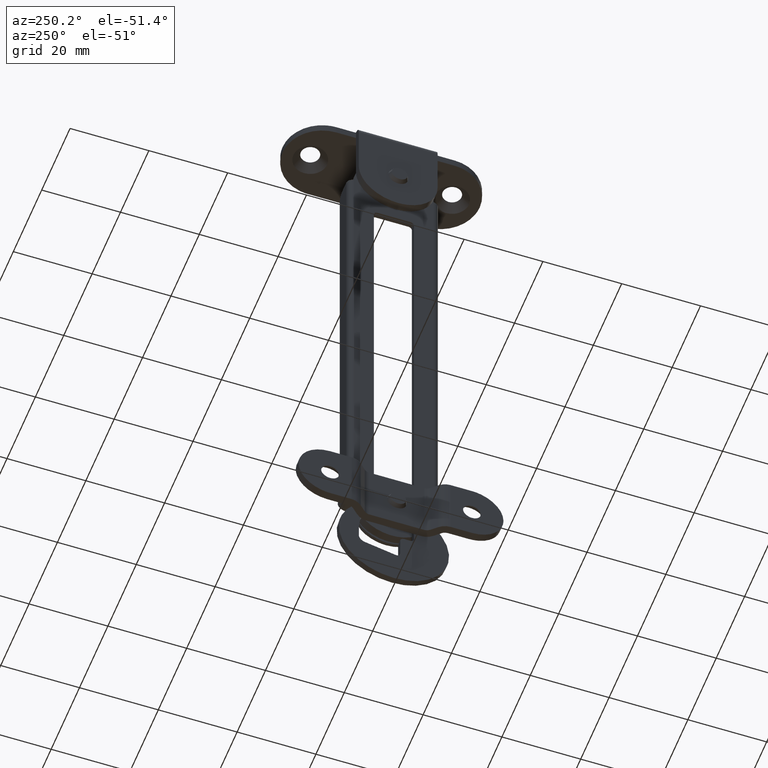
[diagram: clean part render]
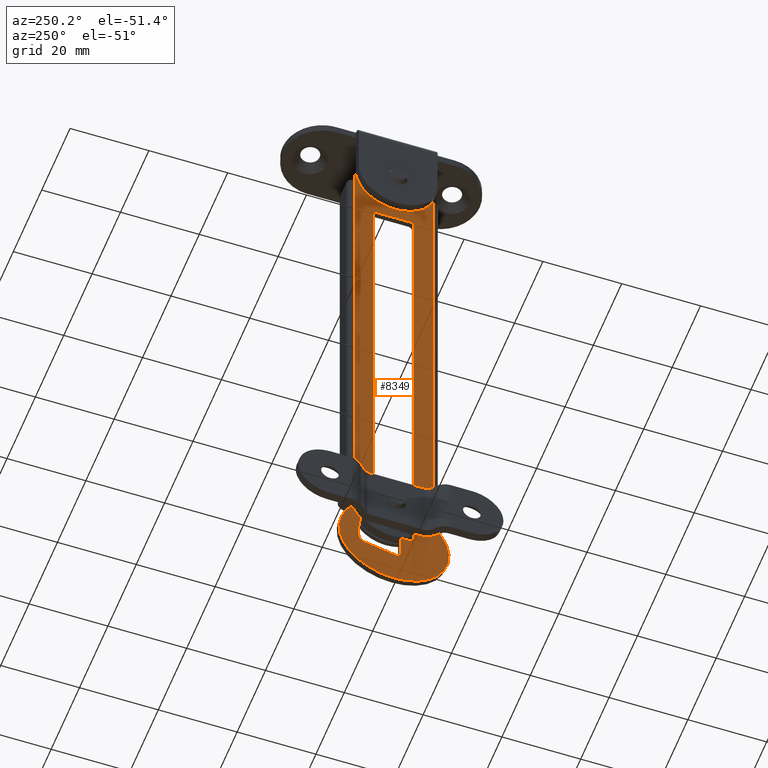
[diagram: same view with one face highlighted and labeled with its STEP entity id]
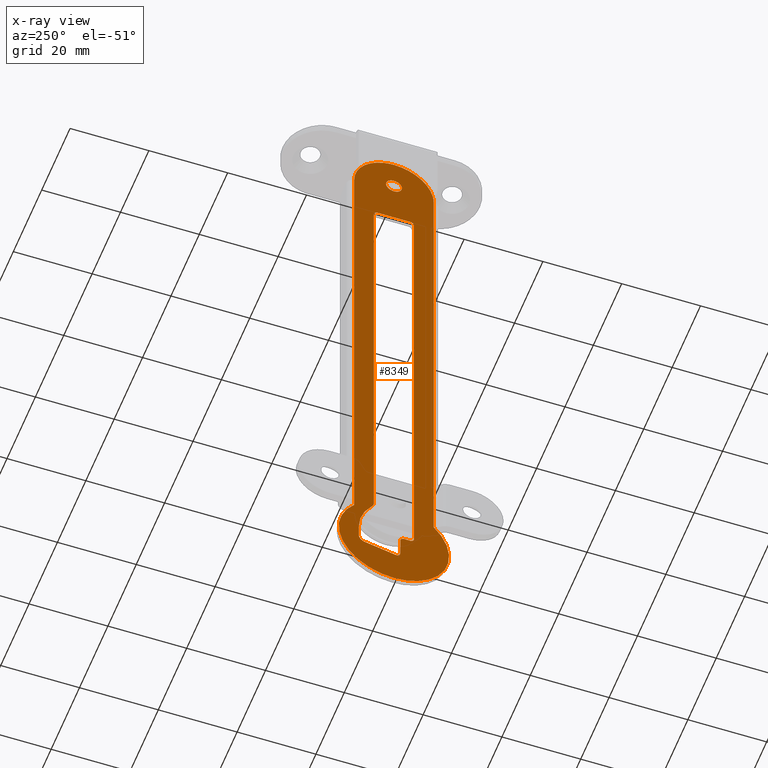
[diagram: x-ray of the same camera — body ghosted, the highlighted face saturated]
A machine part, auxiliary view. The second image highlights one B-rep face of the part: STEP entity #8349.
The next image is the same camera in x-ray: the body ghosted, the highlighted face saturated — about 0% of this face is hidden behind the body in this view.
In plain terms, the highlighted face is a freeform B-spline surface patch.
Its self-contained STEP definition (entity closure, byte-faithful):
#7864=CARTESIAN_POINT('',(5.0,0.0,-2.0));
#7865=VERTEX_POINT('',#7864);
#7866=CARTESIAN_POINT('',(5.000000000002252,1.401818145029890,-1.426501294528774));
#7867=VERTEX_POINT('',#7866);
#7868=CARTESIAN_POINT('',(5.0,0.0,-2.0));
#7869=CARTESIAN_POINT('',(5.000000000000392,0.242750482605228,-2.000207506860481));
#7870=CARTESIAN_POINT('',(5.000000000001228,0.760375032929192,-1.904511084998139));
#7871=CARTESIAN_POINT('',(5.000000000001923,1.205831004046107,-1.619581476289328));
#7872=CARTESIAN_POINT('',(5.000000000002252,1.401818145029890,-1.426501294528774));
#7873=B_SPLINE_CURVE_WITH_KNOTS('',3,(#7868,#7869,#7870,#7871,#7872),.UNSPECIFIED.,.F.,.U.,(4,1,4),(0.000057332587887,0.728239926849253,1.553409176332470),.UNSPECIFIED.);
#7874=EDGE_CURVE('',#7865,#7867,#7873,.T.);
#7876=CARTESIAN_POINT('',(5.0,-1.999999999999999,0.000000055035993));
#7877=VERTEX_POINT('',#7876);
#7878=CARTESIAN_POINT('',(5.0,-1.999999999999999,0.000000055035993));
#7879=CARTESIAN_POINT('',(5.000000000000002,-2.000154274065392,-0.245425296738623));
#7880=CARTESIAN_POINT('',(5.000000000000003,-1.899585663976937,-0.785426038325663));
#7881=CARTESIAN_POINT('',(4.999999999999996,-1.480612590041234,-1.412567735145405));
#7882=CARTESIAN_POINT('',(5.000000000000002,-0.817693192794471,-1.879239699048992));
#7883=CARTESIAN_POINT('',(5.000000000000008,-0.310991917806890,-2.000531420894137));
#7884=CARTESIAN_POINT('',(5.0,0.0,-2.0));
#7885=B_SPLINE_CURVE_WITH_KNOTS('',3,(#7878,#7879,#7880,#7881,#7882,#7883,#7884),.UNSPECIFIED.,.F.,.U.,(4,1,1,1,4),(0.000000633043129,0.736327357348586,1.619829709536686,2.208981177237709,3.141671519850971),.UNSPECIFIED.);
#7886=EDGE_CURVE('',#7877,#7865,#7885,.T.);
#7888=CARTESIAN_POINT('',(5.000000000002252,-1.401818145029889,1.426501294528773));
#7889=VERTEX_POINT('',#7888);
#7890=CARTESIAN_POINT('',(5.000000000002252,-1.401818145029889,1.426501294528773));
#7891=CARTESIAN_POINT('',(5.000000000002031,-1.543469808508132,1.287395493456759));
#7892=CARTESIAN_POINT('',(5.000000000001372,-1.865388447964063,0.859631245381083));
#7893=CARTESIAN_POINT('',(5.000000000000523,-2.000795590417968,0.331071031236148));
#7894=CARTESIAN_POINT('',(5.0,-1.999999999999999,0.000000055035993));
#7895=B_SPLINE_CURVE_WITH_KNOTS('',3,(#7890,#7891,#7892,#7893,#7894),.UNSPECIFIED.,.F.,.U.,(4,1,4),(0.000000148909166,0.595626332296991,1.588290866606410),.UNSPECIFIED.);
#7896=EDGE_CURVE('',#7889,#7877,#7895,.T.);
#7964=CARTESIAN_POINT('',(5.0,1.999999999999999,-0.000000055035999));
#7965=VERTEX_POINT('',#7964);
#7966=CARTESIAN_POINT('',(5.000000000002252,1.401818145029890,-1.426501294528774));
#7967=CARTESIAN_POINT('',(5.000000000002035,1.543461960505691,-1.287389668160199));
#7968=CARTESIAN_POINT('',(5.000000000001357,1.865404834368843,-0.859643948199254));
#7969=CARTESIAN_POINT('',(5.000000000000523,2.000786988201352,-0.331064258493353));
#7970=CARTESIAN_POINT('',(5.0,1.999999999999999,-0.000000055035999));
#7971=B_SPLINE_CURVE_WITH_KNOTS('',3,(#7966,#7967,#7968,#7969,#7970),.UNSPECIFIED.,.F.,.U.,(4,1,4),(0.000000148909174,0.595626332296995,1.588290866606404),.UNSPECIFIED.);
#7972=EDGE_CURVE('',#7867,#7965,#7971,.T.);
#8007=CARTESIAN_POINT('',(5.0,0.0,2.0));
#8008=VERTEX_POINT('',#8007);
#8009=CARTESIAN_POINT('',(5.0,0.0,2.0));
#8010=CARTESIAN_POINT('',(5.000000000000258,-0.161776401465971,1.999984603863240));
#8011=CARTESIAN_POINT('',(5.000000000001095,-0.679721010160587,1.937098058263975));
#8012=CARTESIAN_POINT('',(5.000000000001855,-1.148417761829761,1.676910695704403));
#8013=CARTESIAN_POINT('',(5.000000000002252,-1.401818145029889,1.426501294528773));
#8014=B_SPLINE_CURVE_WITH_KNOTS('',3,(#8009,#8010,#8011,#8012,#8013),.UNSPECIFIED.,.F.,.U.,(4,1,4),(0.000057332587848,0.485474591114293,1.553409176332470),.UNSPECIFIED.);
#8015=EDGE_CURVE('',#8008,#7889,#8014,.T.);
#8017=CARTESIAN_POINT('',(5.0,1.999999999999999,-0.000000055035999));
#8018=CARTESIAN_POINT('',(4.999999999999997,2.000069708089676,0.196348006781343));
#8019=CARTESIAN_POINT('',(5.000000000000010,1.941729052247379,0.589027894442389));
#8020=CARTESIAN_POINT('',(4.999999999999995,1.708386348194893,1.082434289428185));
#8021=CARTESIAN_POINT('',(5.000000000000011,1.358559647571046,1.498097595881534));
#8022=CARTESIAN_POINT('',(4.999999999999977,0.817754237192344,1.879280506933008));
#8023=CARTESIAN_POINT('',(5.000000000000017,0.310987163029067,2.000528796010013));
#8024=CARTESIAN_POINT('',(5.0,0.0,2.0));
#8025=B_SPLINE_CURVE_WITH_KNOTS('',3,(#8017,#8018,#8019,#8020,#8021,#8022,#8023,#8024),.UNSPECIFIED.,.F.,.U.,(4,1,1,1,1,4),(0.000000633043034,0.589043785690442,1.178173092063796,1.619829709536649,2.208981177237683,3.141671519850974),.UNSPECIFIED.);
#8026=EDGE_CURVE('',#7965,#8008,#8025,.T.);
#8031=CARTESIAN_POINT('',(5.0,-15.397194791594870,15.997102267495860));
#8032=CARTESIAN_POINT('',(5.0,15.397271554817030,15.997102267495860));
#8033=CARTESIAN_POINT('',(5.0,-15.397194791594870,-157.897115008068200));
#8034=CARTESIAN_POINT('',(5.0,15.397271554817030,-157.897115008068200));
#8035=B_SPLINE_SURFACE_WITH_KNOTS('',1,1,((#8031,#8033),(#8032,#8034)),.UNSPECIFIED.,.F.,.F.,.U.,(2,2),(2,2),(0.0,30.794466346411891),(0.0,173.894217275563990),.UNSPECIFIED.);
#8036=CARTESIAN_POINT('',(5.0,-10.100007000000000,-121.000015000000000));
#8037=VERTEX_POINT('',#8036);
#8038=CARTESIAN_POINT('',(5.0,-10.100007000000000,-126.305178302048200));
#8039=VERTEX_POINT('',#8038);
#8040=CARTESIAN_POINT('',(5.0,-10.100007000000000,-121.000015000000000));
#8041=CARTESIAN_POINT('',(5.0,-10.100007000000000,-126.305178302048200));
#8042=QUASI_UNIFORM_CURVE('',1,(#8040,#8041),.UNSPECIFIED.,.F.,.U.);
#8043=EDGE_CURVE('',#8037,#8039,#8042,.T.);
#8044=ORIENTED_EDGE('',*,*,#8043,.F.);
#8045=CARTESIAN_POINT('',(5.0,-10.100007000000000,-2.0));
#8046=VERTEX_POINT('',#8045);
#8047=CARTESIAN_POINT('',(5.0,-10.100007000000000,-121.000015000000000));
#8048=CARTESIAN_POINT('',(5.0,-10.100007000000000,-2.0));
#8049=QUASI_UNIFORM_CURVE('',1,(#8047,#8048),.UNSPECIFIED.,.F.,.U.);
#8050=EDGE_CURVE('',#8037,#8046,#8049,.T.);
#8051=ORIENTED_EDGE('',*,*,#8050,.T.);
#8052=CARTESIAN_POINT('',(5.0,-0.000003828307513,8.100006499999472));
#8053=VERTEX_POINT('',#8052);
#8054=CARTESIAN_POINT('',(5.0,-0.000003828307513,8.100006499999472));
#8055=CARTESIAN_POINT('',(4.999999999999998,-0.867630318277613,8.100216146131817));
#8056=CARTESIAN_POINT('',(5.000000000000004,-2.437504521301170,7.896466870755083));
#8057=CARTESIAN_POINT('',(4.999999999999995,-4.729615938110070,7.028504581130747));
#8058=CARTESIAN_POINT('',(4.999999999999991,-6.523320184057146,5.813985702432607));
#8059=CARTESIAN_POINT('',(5.000000000000010,-8.067392252827252,4.192106086311246));
#8060=CARTESIAN_POINT('',(4.999999999999972,-9.125198595369080,2.498742139036578));
#8061=CARTESIAN_POINT('',(5.000000000000082,-9.907149412522903,0.354854670581673));
#8062=CARTESIAN_POINT('',(4.999999999999884,-10.100231028255619,-1.132369227199563));
#8063=CARTESIAN_POINT('',(5.0,-10.100007000000000,-2.0));
#8064=B_SPLINE_CURVE_WITH_KNOTS('',3,(#8054,#8055,#8056,#8057,#8058,#8059,#8060,#8061,#8062,#8063),.UNSPECIFIED.,.F.,.U.,(4,1,1,1,1,1,1,4),(0.000000333540692,2.602859856510532,4.709976277325836,7.312858298304068,9.048028793671836,11.403068057173890,13.262300541912721,15.865150781404790),.UNSPECIFIED.);
#8065=EDGE_CURVE('',#8053,#8046,#8064,.T.);
#8066=ORIENTED_EDGE('',*,*,#8065,.F.);
#8067=CARTESIAN_POINT('',(5.0,10.100006000000061,-2.0));
#8068=VERTEX_POINT('',#8067);
#8069=CARTESIAN_POINT('',(5.0,10.100006000000061,-2.0));
#8070=CARTESIAN_POINT('',(4.999999999999997,10.101173627492731,-0.760350650787613));
#8071=CARTESIAN_POINT('',(5.000000000000004,9.714613280780577,1.304479920853986));
#8072=CARTESIAN_POINT('',(4.999999999999993,8.282221088407567,3.984627514046963));
#8073=CARTESIAN_POINT('',(5.000000000000003,6.709904275483480,5.656394491503420));
#8074=CARTESIAN_POINT('',(5.000000000000008,5.001674526166078,6.827985552593090));
#8075=CARTESIAN_POINT('',(4.999999999999933,2.932922541713064,7.791306403323937));
#8076=CARTESIAN_POINT('',(5.000000000000158,1.156954144977457,8.100869830712421));
#8077=CARTESIAN_POINT('',(5.0,-0.000003828307513,8.100006499999472));
#8078=B_SPLINE_CURVE_WITH_KNOTS('',3,(#8069,#8070,#8071,#8072,#8073,#8074,#8075,#8076,#8077),.UNSPECIFIED.,.F.,.U.,(4,1,1,1,1,1,4),(0.000000332383731,3.718391077241288,6.197368515222276,9.048030936656446,10.535428281974680,12.394661205987211,15.865154533206640),.UNSPECIFIED.);
#8079=EDGE_CURVE('',#8068,#8053,#8078,.T.);
#8080=ORIENTED_EDGE('',*,*,#8079,.F.);
#8081=CARTESIAN_POINT('',(5.0,10.100006000000061,-121.000015000000000));
#8082=VERTEX_POINT('',#8081);
#8083=CARTESIAN_POINT('',(5.0,10.100006000000061,-2.0));
#8084=CARTESIAN_POINT('',(5.0,10.100006000000061,-121.000015000000000));
#8085=QUASI_UNIFORM_CURVE('',1,(#8083,#8084),.UNSPECIFIED.,.F.,.U.);
#8086=EDGE_CURVE('',#8068,#8082,#8085,.T.);
#8087=ORIENTED_EDGE('',*,*,#8086,.T.);
#8088=CARTESIAN_POINT('',(5.0,10.100006000000061,-126.305177260256000));
#8089=VERTEX_POINT('',#8088);
#8090=CARTESIAN_POINT('',(5.0,10.100006000000061,-126.305177260256000));
#8091=CARTESIAN_POINT('',(5.0,10.100006000000061,-121.000015000000000));
#8092=QUASI_UNIFORM_CURVE('',1,(#8090,#8091),.UNSPECIFIED.,.F.,.U.);
#8093=EDGE_CURVE('',#8089,#8082,#8092,.T.);
#8094=ORIENTED_EDGE('',*,*,#8093,.F.);
#8095=CARTESIAN_POINT('',(5.0,0.000005867955349,-150.000014999998800));
#8096=VERTEX_POINT('',#8095);
#8097=CARTESIAN_POINT('',(5.0,0.000005867955349,-150.000014999998800));
#8098=CARTESIAN_POINT('',(5.000000000000004,0.425774520095589,-150.000022084726110));
#8099=CARTESIAN_POINT('',(5.000000000000005,0.894090563072024,-149.978604633431900));
#8100=CARTESIAN_POINT('',(4.999999999999998,1.402670392741060,-149.929942782536190));
#8101=CARTESIAN_POINT('',(5.000000000000002,1.529549511579450,-149.915410687428790));
#8102=CARTESIAN_POINT('',(4.999999999999999,1.698896578985875,-149.897274377073810));
#8103=CARTESIAN_POINT('',(4.999999999999993,2.796998325773016,-149.756136781638990));
#8104=CARTESIAN_POINT('',(5.000000000000027,4.501238351286051,-149.335615849556800));
#8105=CARTESIAN_POINT('',(4.999999999999977,7.035547468475508,-148.204994492189510));
#8106=CARTESIAN_POINT('',(5.000000000000043,9.423233351325568,-146.531487438783390));
#8107=CARTESIAN_POINT('',(4.999999999999943,10.954199519172640,-144.794342657089800));
#8108=CARTESIAN_POINT('',(5.000000000000013,11.645859012210620,-143.771333340668410));
#8109=CARTESIAN_POINT('',(5.000000000000002,11.738303694986440,-143.628293919034410));
#8110=CARTESIAN_POINT('',(4.999999999999999,11.808368650713209,-143.521522020562200));
#8111=CARTESIAN_POINT('',(4.999999999999999,11.944387707995871,-143.305302535985700));
#8112=CARTESIAN_POINT('',(5.000000000000002,12.075987966703270,-143.086307697634400));
#8113=CARTESIAN_POINT('',(5.000000000000001,12.201400178240471,-142.863723550973900));
#8114=CARTESIAN_POINT('',(5.0,12.285227436627039,-142.715457536091210));
#8115=CARTESIAN_POINT('',(5.000000000000001,12.365989467417030,-142.565451643847890));
#8116=CARTESIAN_POINT('',(4.999999999999998,12.443493985245279,-142.413789619405210));
#8117=CARTESIAN_POINT('',(4.999999999999999,12.502918927846240,-142.300692336937690));
#8118=CARTESIAN_POINT('',(5.000000000000001,12.558328456224670,-142.185578042143990));
#8119=CARTESIAN_POINT('',(5.0,12.615815149775070,-142.071488026888890));
#8120=CARTESIAN_POINT('',(4.999999999999999,12.669142610434950,-141.955393769055090));
#8121=CARTESIAN_POINT('',(4.999999999999924,12.706012912720350,-141.878627445924110));
#8122=CARTESIAN_POINT('',(5.000000000002284,13.221226976717359,-140.756524602107790));
#8123=CARTESIAN_POINT('',(4.999999999997466,13.605022965021490,-139.527326169190500));
#8124=CARTESIAN_POINT('',(5.000000000000273,13.822699957026570,-138.225434519750710));
#8125=CARTESIAN_POINT('',(5.000000000000034,13.847233250447680,-138.056904623220390));
#8126=CARTESIAN_POINT('',(4.999999999999992,13.873391568900320,-137.888614126090000));
#8127=CARTESIAN_POINT('',(4.999999999999996,13.893337224818151,-137.719471684788400));
#8128=CARTESIAN_POINT('',(5.000000000000020,13.919480993299050,-137.508213394569990));
#8129=CARTESIAN_POINT('',(5.000000000000061,13.931795736454511,-137.381074467339890));
#8130=CARTESIAN_POINT('',(4.999999999999897,14.074728655620859,-135.854761098766010));
#8131=CARTESIAN_POINT('',(4.999999999999967,13.939119223623599,-133.704520781916390));
#8132=CARTESIAN_POINT('',(5.000000000000003,13.058484315604240,-130.759445194353500));
#8133=CARTESIAN_POINT('',(5.000000000000006,12.292863901248641,-129.228493146401210));
#8134=CARTESIAN_POINT('',(4.999999999999999,11.715552956743720,-128.334085918888090));
#8135=CARTESIAN_POINT('',(5.0,11.620102760016231,-128.193025440225400));
#8136=CARTESIAN_POINT('',(5.0,11.549728889175450,-128.086401542961200));
#8137=CARTESIAN_POINT('',(5.000000000000001,11.475616091022090,-127.982344478540800));
#8138=CARTESIAN_POINT('',(4.999999999999998,11.403402077619790,-127.876961596371400));
#8139=CARTESIAN_POINT('',(5.000000000000001,11.327426333836240,-127.774255182424300));
#8140=CARTESIAN_POINT('',(4.999999999999931,11.277970622559661,-127.704924741182400));
#8141=CARTESIAN_POINT('',(5.000000000000649,10.898051760789590,-127.191593489885090));
#8142=CARTESIAN_POINT('',(4.999999999999020,10.512777785400139,-126.735180735920390));
#8143=CARTESIAN_POINT('',(5.0,10.100006000000061,-126.305177260256000));
#8144=B_SPLINE_CURVE_WITH_KNOTS('',3,(#8097,#8098,#8099,#8100,#8101,#8102,#8103,#8104,#8105,#8106,#8107,#8108,#8109,#8110,#8111,#8112,#8113,#8114,#8115,#8116,#8117,#8118,#8119,#8120,#8121,#8122,#8123,#8124,#8125,#8126,#8127,#8128,#8129,#8130,#8131,#8132,#8133,#8134,#8135,#8136,#8137,#8138,#8139,#8140,#8141,#8142,#8143),.UNSPECIFIED.,.F.,.U.,(4,1,1,1,1,1,1,1,1,1,1,1,1,1,1,1,1,1,1,1,1,1,1,2,1,1,1,1,1,1,2,1,1,1,1,1,1,1,1,1,2,4),(0.000586377256532,1.277900001553633,1.405543145957182,1.533280186505131,1.661017227053062,1.916491021736171,4.854464454163512,6.898238018311378,10.219374243722401,13.540539280534340,13.796015221818029,13.923752805595679,14.051490389373340,14.179128710093920,14.690082552468240,14.817828765434390,14.945574978400520,15.201067227325741,15.328812745633179,15.456558263940609,15.584302548582651,15.712046833224671,15.839789135705960,15.967531438187260,19.543948376612668,19.799412342411291,19.927145194334908,20.054878046258551,20.310292579545859,20.438029526288162,20.693503310392430,25.036554823398092,27.080325564927179,29.890509509530990,30.145993368857919,30.273734915602361,30.401476462346810,30.529217232321219,30.656958002295660,30.784697521789731,30.912437041283798,32.700606629468297),.UNSPECIFIED.);
#8145=EDGE_CURVE('',#8096,#8089,#8144,.T.);
#8146=ORIENTED_EDGE('',*,*,#8145,.F.);
#8147=CARTESIAN_POINT('',(5.0,-10.100007000000000,-126.305178302048200));
#8148=CARTESIAN_POINT('',(4.999999999999995,-10.394852157906239,-126.612335252378500));
#8149=CARTESIAN_POINT('',(5.000000000000009,-10.703704623174280,-126.965023381804300));
#8150=CARTESIAN_POINT('',(5.0,-11.020784404685500,-127.365625422889490));
#8151=CARTESIAN_POINT('',(5.000000000000003,-11.098162382120890,-127.467223219367000));
#8152=CARTESIAN_POINT('',(5.0,-11.202346166581339,-127.601955474384500));
#8153=CARTESIAN_POINT('',(4.999999999999993,-11.860904902043711,-128.491905455539890));
#8154=CARTESIAN_POINT('',(5.000000000000010,-13.037535711946390,-130.531731329770910));
#8155=CARTESIAN_POINT('',(5.000000000000004,-13.908831140935980,-133.545706181414090));
#8156=CARTESIAN_POINT('',(4.999999999999988,-14.063131832861590,-136.449165022408210));
#8157=CARTESIAN_POINT('',(5.000000000000024,-13.858430754015661,-138.145756546177410));
#8158=CARTESIAN_POINT('',(4.999999999999996,-13.671121624253180,-139.020133157404590));
#8159=CARTESIAN_POINT('',(4.999999999999998,-13.632106751865740,-139.185921778881410));
#8160=CARTESIAN_POINT('',(5.000000000000003,-13.573812944574460,-139.434658270871610));
#8161=CARTESIAN_POINT('',(4.999999999999996,-13.508524313856521,-139.681667674228890));
#8162=CARTESIAN_POINT('',(5.0,-13.438313590183760,-139.927277154085290));
#8163=CARTESIAN_POINT('',(5.000000000000001,-13.400788365236940,-140.049355294461800));
#8164=CARTESIAN_POINT('',(4.999999999999999,-13.352088771836790,-140.212567410079400));
#8165=CARTESIAN_POINT('',(5.0,-13.299802349631570,-140.374710451653100));
#8166=CARTESIAN_POINT('',(5.0,-13.244057907967560,-140.535648115003600));
#8167=CARTESIAN_POINT('',(5.0,-13.203617652858039,-140.656837684103410));
#8168=CARTESIAN_POINT('',(4.999999999999998,-13.158941299963500,-140.776527075746490));
#8169=CARTESIAN_POINT('',(5.000000000000002,-13.116442306183551,-140.897005693443990));
#8170=CARTESIAN_POINT('',(4.999999999999996,-13.069617170449430,-141.015871633496800));
#8171=CARTESIAN_POINT('',(4.999999999998688,-13.039741669265601,-141.095615590626210));
#8172=CARTESIAN_POINT('',(5.000000000000721,-12.587158674943559,-142.244432808653700));
#8173=CARTESIAN_POINT('',(5.000000000000895,-11.965908787342141,-143.372386471891190));
#8174=CARTESIAN_POINT('',(4.999999999999764,-11.177551612301899,-144.431042113274200));
#8175=CARTESIAN_POINT('',(5.000000000000012,-11.072951907219201,-144.565443230888800));
#8176=CARTESIAN_POINT('',(5.000000000000008,-10.969637303763131,-144.700838467408800));
#8177=CARTESIAN_POINT('',(4.999999999999977,-10.861483404521030,-144.832405490957510));
#8178=CARTESIAN_POINT('',(5.000000000000085,-10.726916701735011,-144.997341590754790));
#8179=CARTESIAN_POINT('',(4.999999999999726,-9.927651513465479,-145.938673309605690));
#8180=CARTESIAN_POINT('',(5.000000000000220,-8.406141997010979,-147.324743530305110));
#8181=CARTESIAN_POINT('',(4.999999999999881,-5.748737870904630,-148.878873057083500));
#8182=CARTESIAN_POINT('',(5.000000000000045,-3.794721686369059,-149.525271184987790));
#8183=CARTESIAN_POINT('',(4.999999999999989,-2.582439316485182,-149.760451421841910));
#8184=CARTESIAN_POINT('',(5.000000000000001,-2.414601871387279,-149.789399288548310));
#8185=CARTESIAN_POINT('',(5.000000000000001,-2.288938076142567,-149.812410804421890));
#8186=CARTESIAN_POINT('',(5.000000000000002,-2.162545991728455,-149.831001952337690));
#8187=CARTESIAN_POINT('',(5.000000000000003,-2.036512309753394,-149.851881053635990));
#8188=CARTESIAN_POINT('',(4.999999999999999,-1.909804556159905,-149.868192907196400));
#8189=CARTESIAN_POINT('',(4.999999999999987,-1.825539573370202,-149.880524896901190));
#8190=CARTESIAN_POINT('',(5.000000000000114,-1.192122540909462,-149.961913253709010));
#8191=CARTESIAN_POINT('',(4.999999999999771,-0.596044306019277,-150.000032586348110));
#8192=CARTESIAN_POINT('',(5.0,0.000005867955349,-150.000014999998800));
#8193=B_SPLINE_CURVE_WITH_KNOTS('',3,(#8147,#8148,#8149,#8150,#8151,#8152,#8153,#8154,#8155,#8156,#8157,#8158,#8159,#8160,#8161,#8162,#8163,#8164,#8165,#8166,#8167,#8168,#8169,#8170,#8171,#8172,#8173,#8174,#8175,#8176,#8177,#8178,#8179,#8180,#8181,#8182,#8183,#8184,#8185,#8186,#8187,#8188,#8189,#8190,#8191,#8192),.UNSPECIFIED.,.F.,.U.,(4,1,1,1,1,1,1,1,1,1,1,1,1,1,1,1,1,1,1,1,1,1,1,2,1,1,1,1,1,1,1,1,1,1,1,1,1,1,1,1,2,4),(0.000586377895118,1.277900404111698,1.405543588716416,1.533280669469892,1.661017750223358,1.916491625316393,4.854465982399727,8.686546443997788,11.241267131267760,13.540543542617600,13.796019564317049,13.923757188302719,14.051494812288400,14.562446026941929,14.690087176245321,14.817833429431049,14.945579682616779,15.201072011981481,15.328817570507850,15.456563129034301,15.584307453893381,15.712051778752450,15.839794121447429,15.967536464142389,19.543954527997869,19.799418574201169,19.927151466327889,20.054884358454590,20.310298972175939,20.438035959122139,20.693509823633509,24.014669668489780,26.569394366159351,29.890518917323870,30.146002857076919,30.273744444034811,30.401486030992690,30.529226841180300,30.656967651367911,30.784707211074220,30.912446770780541,32.700616921695350),.UNSPECIFIED.);
#8194=EDGE_CURVE('',#8039,#8096,#8193,.T.);
#8195=ORIENTED_EDGE('',*,*,#8194,.F.);
#8196=EDGE_LOOP('',(#8044,#8051,#8066,#8080,#8087,#8094,#8146,#8195));
#8197=FACE_OUTER_BOUND('',#8196,.T.);
#8198=CARTESIAN_POINT('',(5.0,5.100005999999830,-13.000000488692200));
#8199=VERTEX_POINT('',#8198);
#8200=CARTESIAN_POINT('',(5.0,4.100005598574220,-12.0));
#8201=VERTEX_POINT('',#8200);
#8202=CARTESIAN_POINT('',(5.0,5.100005999999830,-13.000000488692200));
#8203=CARTESIAN_POINT('',(4.999999999999997,5.100061016927429,-12.885471009396230));
#8204=CARTESIAN_POINT('',(5.000000000000001,5.057450411645355,-12.640004621338489));
#8205=CARTESIAN_POINT('',(5.000000000000004,4.860284366862512,-12.310918711848240));
#8206=CARTESIAN_POINT('',(5.000000000000004,4.525241559833044,-12.062563533395631));
#8207=CARTESIAN_POINT('',(5.000000000000002,4.247309961945345,-11.999777796633790));
#8208=CARTESIAN_POINT('',(5.0,4.100005598574220,-12.0));
#8209=B_SPLINE_CURVE_WITH_KNOTS('',3,(#8202,#8203,#8204,#8205,#8206,#8207,#8208),.UNSPECIFIED.,.F.,.U.,(4,1,1,1,4),(0.000001033225177,0.343638745351987,0.736452276698785,1.129115423266536,1.570954385299348),.UNSPECIFIED.);
#8210=EDGE_CURVE('',#8199,#8201,#8209,.T.);
#8211=ORIENTED_EDGE('',*,*,#8210,.T.);
#8212=CARTESIAN_POINT('',(5.0,-4.100007645771830,-12.000000000000201));
#8213=VERTEX_POINT('',#8212);
#8214=CARTESIAN_POINT('',(5.0,-4.100007645771830,-12.000000000000201));
#8215=CARTESIAN_POINT('',(5.0,4.100005598574220,-12.0));
#8216=QUASI_UNIFORM_CURVE('',1,(#8214,#8215),.UNSPECIFIED.,.F.,.U.);
#8217=EDGE_CURVE('',#8213,#8201,#8216,.T.);
#8218=ORIENTED_EDGE('',*,*,#8217,.F.);
#8219=CARTESIAN_POINT('',(5.0,-5.100007000000000,-13.0));
#8220=VERTEX_POINT('',#8219);
#8221=CARTESIAN_POINT('',(5.0,-4.100007645771830,-12.000000000000201));
#8222=CARTESIAN_POINT('',(5.000000000000007,-4.214535559509164,-11.999946722072290));
#8223=CARTESIAN_POINT('',(4.999999999999974,-4.460012651308906,-12.042545263397461));
#8224=CARTESIAN_POINT('',(5.000000000000039,-4.746063808033800,-12.214063624696820));
#8225=CARTESIAN_POINT('',(4.999999999999947,-5.015478497015336,-12.526177479820131));
#8226=CARTESIAN_POINT('',(5.000000000000030,-5.100665144118824,-12.803446626160220));
#8227=CARTESIAN_POINT('',(5.0,-5.100007000000000,-13.0));
#8228=B_SPLINE_CURVE_WITH_KNOTS('',3,(#8221,#8222,#8223,#8224,#8225,#8226,#8227),.UNSPECIFIED.,.F.,.U.,(4,1,1,1,4),(0.000001037269839,0.343638559344426,0.736451876026035,0.981840294315776,1.570953519562007),.UNSPECIFIED.);
#8229=EDGE_CURVE('',#8213,#8220,#8228,.T.);
#8230=ORIENTED_EDGE('',*,*,#8229,.T.);
#8231=CARTESIAN_POINT('',(5.0,-5.100007000000000,-133.000014999999990));
#8232=VERTEX_POINT('',#8231);
#8233=CARTESIAN_POINT('',(5.0,-5.100007000000000,-133.000014999999990));
#8234=CARTESIAN_POINT('',(5.0,-5.100007000000000,-13.0));
#8235=QUASI_UNIFORM_CURVE('',1,(#8233,#8234),.UNSPECIFIED.,.F.,.U.);
#8236=EDGE_CURVE('',#8232,#8220,#8235,.T.);
#8237=ORIENTED_EDGE('',*,*,#8236,.F.);
#8238=CARTESIAN_POINT('',(5.0,-4.100007000000000,-134.000014999999990));
#8239=VERTEX_POINT('',#8238);
#8240=CARTESIAN_POINT('',(5.0,-5.100007000000000,-133.000014999999990));
#8241=CARTESIAN_POINT('',(4.999999999999999,-5.100237715980876,-133.147330681326990));
#8242=CARTESIAN_POINT('',(5.0,-5.044749797601982,-133.392555860850990));
#8243=CARTESIAN_POINT('',(5.0,-4.833403862625243,-133.708944593659310));
#8244=CARTESIAN_POINT('',(5.000000000000003,-4.525268960487343,-133.937462948803610));
#8245=CARTESIAN_POINT('',(4.999999999999996,-4.247312817795333,-134.000229991209810));
#8246=CARTESIAN_POINT('',(5.0,-4.100007000000000,-134.000014999999990));
#8247=B_SPLINE_CURVE_WITH_KNOTS('',3,(#8240,#8241,#8242,#8243,#8244,#8245,#8246),.UNSPECIFIED.,.F.,.U.,(4,1,1,1,4),(0.000001035571785,0.441839857585976,0.736452044491731,1.129115061550782,1.570953883565300),.UNSPECIFIED.);
#8248=EDGE_CURVE('',#8232,#8239,#8247,.T.);
#8249=ORIENTED_EDGE('',*,*,#8248,.T.);
#8250=CARTESIAN_POINT('',(5.0,-2.600006336774890,-134.000015000000190));
#8251=VERTEX_POINT('',#8250);
#8252=CARTESIAN_POINT('',(5.0,-2.600006336774890,-134.000015000000190));
#8253=CARTESIAN_POINT('',(5.0,-4.100007000000000,-134.000014999999990));
#8254=QUASI_UNIFORM_CURVE('',1,(#8252,#8253),.UNSPECIFIED.,.F.,.U.);
#8255=EDGE_CURVE('',#8251,#8239,#8254,.T.);
#8256=ORIENTED_EDGE('',*,*,#8255,.F.);
#8257=CARTESIAN_POINT('',(5.0,-1.600006999999950,-135.000014999999990));
#8258=VERTEX_POINT('',#8257);
#8259=CARTESIAN_POINT('',(5.0,-1.600006999999950,-135.000014999999990));
#8260=CARTESIAN_POINT('',(5.000000000000009,-1.599320268089568,-134.803478872693400));
#8261=CARTESIAN_POINT('',(4.999999999999989,-1.699618341230053,-134.477169516927010));
#8262=CARTESIAN_POINT('',(5.000000000000023,-2.077103990650501,-134.099610730635310));
#8263=CARTESIAN_POINT('',(4.999999999999988,-2.403491458307358,-133.999303251696890));
#8264=CARTESIAN_POINT('',(5.0,-2.600006336774890,-134.000015000000190));
#8265=B_SPLINE_CURVE_WITH_KNOTS('',3,(#8259,#8260,#8261,#8262,#8263,#8264),.UNSPECIFIED.,.F.,.U.,(4,1,1,4),(0.000001037316957,0.589114257063140,0.981840288150958,1.570953509724183),.UNSPECIFIED.);
#8266=EDGE_CURVE('',#8258,#8251,#8265,.T.);
#8267=ORIENTED_EDGE('',*,*,#8266,.F.);
#8268=CARTESIAN_POINT('',(5.0,-1.600006999999760,-140.000015383972400));
#8269=VERTEX_POINT('',#8268);
#8270=CARTESIAN_POINT('',(5.0,-1.600006999999760,-140.000015383972400));
#8271=CARTESIAN_POINT('',(5.0,-1.600006999999950,-135.000014999999990));
#8272=QUASI_UNIFORM_CURVE('',1,(#8270,#8271),.UNSPECIFIED.,.F.,.U.);
#8273=EDGE_CURVE('',#8269,#8258,#8272,.T.);
#8274=ORIENTED_EDGE('',*,*,#8273,.F.);
#8275=CARTESIAN_POINT('',(5.0,-0.391784999999914,-140.978104000000000));
#8276=VERTEX_POINT('',#8275);
#8277=CARTESIAN_POINT('',(5.0,-1.600006999999760,-140.000015383972400));
#8278=CARTESIAN_POINT('',(5.000000000000003,-1.600228572641118,-140.148434553528290));
#8279=CARTESIAN_POINT('',(4.999999999999997,-1.536919003725330,-140.426437181627790));
#8280=CARTESIAN_POINT('',(5.000000000000003,-1.277453173463462,-140.775343727704010));
#8281=CARTESIAN_POINT('',(5.0,-0.879965997921482,-140.999386699537690));
#8282=CARTESIAN_POINT('',(5.000000000000006,-0.555056611205424,-141.013241587578990));
#8283=CARTESIAN_POINT('',(5.0,-0.391784999999914,-140.978104000000000));
#8284=B_SPLINE_CURVE_WITH_KNOTS('',3,(#8277,#8278,#8279,#8280,#8281,#8282,#8283),.UNSPECIFIED.,.F.,.U.,(4,1,1,1,4),(0.000000935633885,0.445198635681058,0.834773397477701,1.279934613744671,1.780785455851858),.UNSPECIFIED.);
#8285=EDGE_CURVE('',#8269,#8276,#8284,.T.);
#8286=ORIENTED_EDGE('',*,*,#8285,.T.);
#8287=CARTESIAN_POINT('',(5.0,7.316435970851051,-139.337143006205390));
#8288=VERTEX_POINT('',#8287);
#8289=CARTESIAN_POINT('',(5.0,7.316435970851051,-139.337143006205390));
#8290=CARTESIAN_POINT('',(5.0,-0.391784999999914,-140.978104000000000));
#8291=QUASI_UNIFORM_CURVE('',1,(#8289,#8290),.UNSPECIFIED.,.F.,.U.);
#8292=EDGE_CURVE('',#8288,#8276,#8291,.T.);
#8293=ORIENTED_EDGE('',*,*,#8292,.F.);
#8294=CARTESIAN_POINT('',(5.0,8.899993000000000,-137.380966000000000));
#8295=VERTEX_POINT('',#8294);
#8296=CARTESIAN_POINT('',(5.0,7.316435970851051,-139.337143006205390));
#8297=CARTESIAN_POINT('',(4.999999999999998,7.538308659320008,-139.289999308364910));
#8298=CARTESIAN_POINT('',(5.000000000000003,8.019351355174040,-139.098042583357800));
#8299=CARTESIAN_POINT('',(5.000000000000006,8.564489234545379,-138.577181319789190));
#8300=CARTESIAN_POINT('',(4.999999999999994,8.849132851596448,-137.948071027729410));
#8301=CARTESIAN_POINT('',(5.000000000000010,8.900012018851143,-137.551082938329100));
#8302=CARTESIAN_POINT('',(5.0,8.899993000000000,-137.380966000000000));
#8303=B_SPLINE_CURVE_WITH_KNOTS('',3,(#8296,#8297,#8298,#8299,#8300,#8301,#8302),.UNSPECIFIED.,.F.,.U.,(4,1,1,1,4),(0.000000313227684,0.680578689556774,1.531269298057837,2.211891206057402,2.722300717061263),.UNSPECIFIED.);
#8304=EDGE_CURVE('',#8288,#8295,#8303,.T.);
#8305=ORIENTED_EDGE('',*,*,#8304,.T.);
#8306=CARTESIAN_POINT('',(5.0,8.899992999999480,-134.000019398229800));
#8307=VERTEX_POINT('',#8306);
#8308=CARTESIAN_POINT('',(5.0,8.899992999999480,-134.000019398229800));
#8309=CARTESIAN_POINT('',(5.0,8.899993000000000,-137.380966000000000));
#8310=QUASI_UNIFORM_CURVE('',1,(#8308,#8309),.UNSPECIFIED.,.F.,.U.);
#8311=EDGE_CURVE('',#8307,#8295,#8310,.T.);
#8312=ORIENTED_EDGE('',*,*,#8311,.F.);
#8313=CARTESIAN_POINT('',(5.0,5.575004375000170,-124.942193399658000));
#8314=VERTEX_POINT('',#8313);
#8315=CARTESIAN_POINT('',(5.0,8.899992999999480,-134.000019398229800));
#8316=CARTESIAN_POINT('',(5.000000000000012,8.900813829622464,-132.563304445392300));
#8317=CARTESIAN_POINT('',(4.999999999999988,8.581173020082106,-130.511586089158500));
#8318=CARTESIAN_POINT('',(5.000000000000013,7.379457185521036,-127.448033622170500));
#8319=CARTESIAN_POINT('',(4.999999999999991,6.372019288352296,-125.880871616735210));
#8320=CARTESIAN_POINT('',(5.0,5.575004375000170,-124.942193399658000));
#8321=B_SPLINE_CURVE_WITH_KNOTS('',3,(#8315,#8316,#8317,#8318,#8319,#8320),.UNSPECIFIED.,.F.,.U.,(4,1,1,4),(0.000000056868247,4.309772587231458,6.156766020036908,9.850827064580525),.UNSPECIFIED.);
#8322=EDGE_CURVE('',#8307,#8314,#8321,.T.);
#8323=ORIENTED_EDGE('',*,*,#8322,.T.);
#8324=CARTESIAN_POINT('',(5.0,5.100006000000180,-123.648218885323600));
#8325=VERTEX_POINT('',#8324);
#8326=CARTESIAN_POINT('',(5.0,5.100006000000180,-123.648218885323600));
#8327=CARTESIAN_POINT('',(4.999999999999996,5.099688366262109,-123.912138341799700));
#8328=CARTESIAN_POINT('',(5.000000000000012,5.194336139970146,-124.380925548070000));
#8329=CARTESIAN_POINT('',(4.999999999999993,5.442133618227310,-124.785772954937000));
#8330=CARTESIAN_POINT('',(5.0,5.575004375000170,-124.942193399658000));
#8331=B_SPLINE_CURVE_WITH_KNOTS('',3,(#8326,#8327,#8328,#8329,#8330),.UNSPECIFIED.,.F.,.U.,(4,1,4),(0.000000098045417,0.791643323929199,1.407366598724693),.UNSPECIFIED.);
#8332=EDGE_CURVE('',#8325,#8314,#8331,.T.);
#8333=ORIENTED_EDGE('',*,*,#8332,.F.);
#8334=CARTESIAN_POINT('',(5.0,5.100005999999830,-13.000000488692200));
#8335=CARTESIAN_POINT('',(5.0,5.100006000000180,-123.648218885323600));
#8336=QUASI_UNIFORM_CURVE('',1,(#8334,#8335),.UNSPECIFIED.,.F.,.U.);
#8337=EDGE_CURVE('',#8199,#8325,#8336,.T.);
#8338=ORIENTED_EDGE('',*,*,#8337,.F.);
#8339=EDGE_LOOP('',(#8211,#8218,#8230,#8237,#8249,#8256,#8267,#8274,#8286,#8293,#8305,#8312,#8323,#8333,#8338));
#8340=FACE_BOUND('',#8339,.T.);
#8341=ORIENTED_EDGE('',*,*,#7886,.T.);
#8342=ORIENTED_EDGE('',*,*,#7874,.T.);
#8343=ORIENTED_EDGE('',*,*,#7972,.T.);
#8344=ORIENTED_EDGE('',*,*,#8026,.T.);
#8345=ORIENTED_EDGE('',*,*,#8015,.T.);
#8346=ORIENTED_EDGE('',*,*,#7896,.T.);
#8347=EDGE_LOOP('',(#8341,#8342,#8343,#8344,#8345,#8346));
#8348=FACE_BOUND('',#8347,.T.);
#8349=ADVANCED_FACE('',(#8197,#8340,#8348),#8035,.T.);